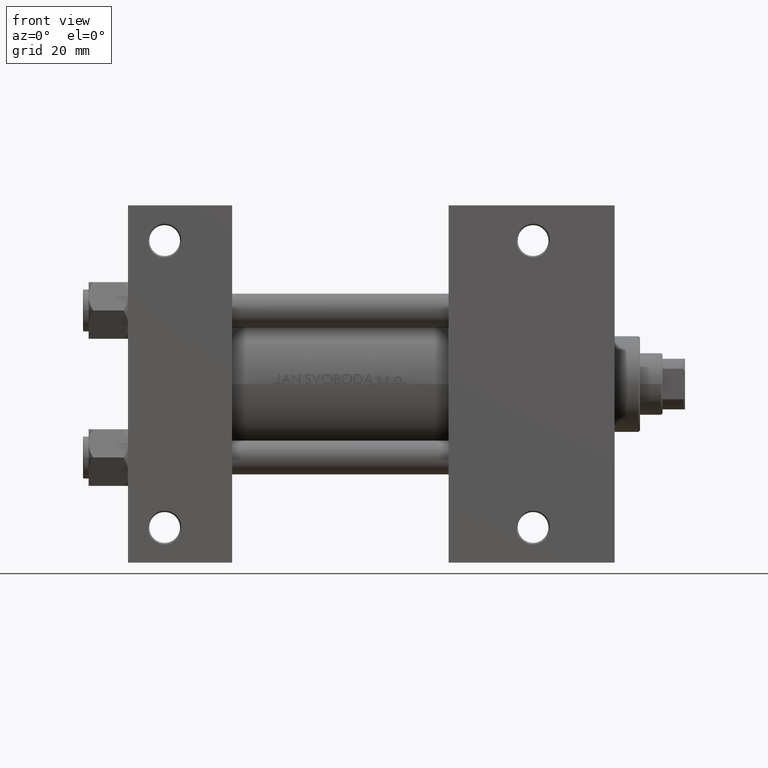
[diagram: clean part render]
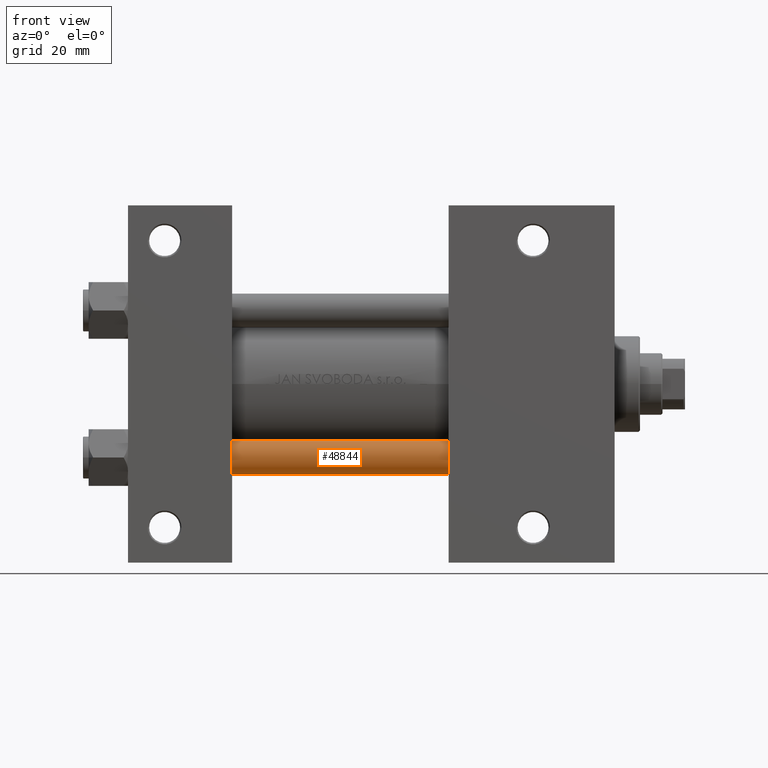
[diagram: same view with one face highlighted and labeled with its STEP entity id]
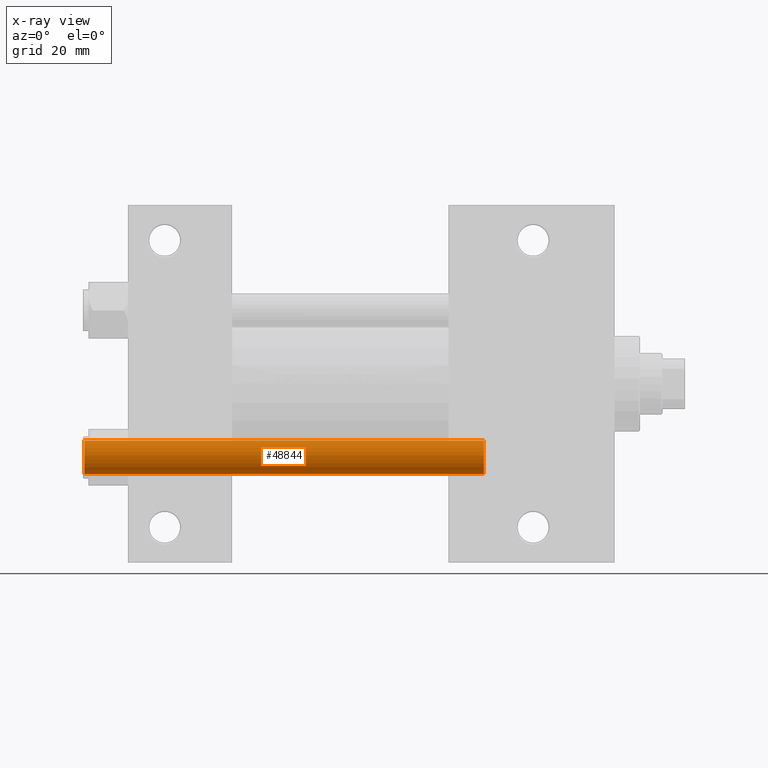
[diagram: x-ray of the same camera — body ghosted, the highlighted face saturated]
A machine part, front view. The second image highlights one B-rep face of the part: STEP entity #48844.
The next image is the same camera in x-ray: the body ghosted, the highlighted face saturated — about 0% of this face is hidden behind the body in this view.
In plain terms, the highlighted cylindrical surface (edge-blend (fillet) strip) has radius 6 mm, axis along (-1, 0, 0).
Its self-contained STEP definition (entity closure, byte-faithful):
#1151 = CIRCLE ( 'NONE', #34580, 6.000000000000000888 ) ;
#2144 = EDGE_CURVE ( 'NONE', #30320, #35912, #23430, .T. ) ;
#2688 = CARTESIAN_POINT ( 'NONE',  ( 6.000000000000000888, 7.347880794884120722E-16, 143.0000000000000000 ) ) ;
#3276 = CARTESIAN_POINT ( 'NONE',  ( -6.000000000000000888, 0.000000000000000000, 142.5000000000000000 ) ) ;
#3711 = ORIENTED_EDGE ( 'NONE', *, *, #45344, .T. ) ;
#5593 = CYLINDRICAL_SURFACE ( 'NONE', #22602, 6.000000000000000888 ) ;
#5954 = ORIENTED_EDGE ( 'NONE', *, *, #2144, .T. ) ;
#6485 = CARTESIAN_POINT ( 'NONE',  ( -6.000000000000000888, 0.000000000000000000, 0.5000000000000281997 ) ) ;
#8303 = AXIS2_PLACEMENT_3D ( 'NONE', #24395, #20905, #15927 ) ;
#8480 = CARTESIAN_POINT ( 'NONE',  ( 6.000000000000000888, 7.347880794884120722E-16, 142.5000000000000000 ) ) ;
#9822 = CARTESIAN_POINT ( 'NONE',  ( 0.000000000000000000, 0.000000000000000000, 143.0000000000000000 ) ) ;
#11067 = CARTESIAN_POINT ( 'NONE',  ( 6.000000000000000888, 7.347880794884120722E-16, 0.5000000000000281997 ) ) ;
#11159 = VECTOR ( 'NONE', #22698, 1000.000000000000000 ) ;
#12402 = ORIENTED_EDGE ( 'NONE', *, *, #21842, .F. ) ;
#13829 = VERTEX_POINT ( 'NONE', #6485 ) ;
#15927 = DIRECTION ( 'NONE',  ( 1.000000000000000000, 0.000000000000000000, 0.000000000000000000 ) ) ;
#16566 = FACE_OUTER_BOUND ( 'NONE', #30965, .T. ) ;
#16859 = DIRECTION ( 'NONE',  ( 1.000000000000000000, 0.000000000000000000, 0.000000000000000000 ) ) ;
#18944 = LINE ( 'NONE', #38856, #11159 ) ;
#20624 = CARTESIAN_POINT ( 'NONE',  ( 0.000000000000000000, 0.000000000000000000, 0.5000000000000281997 ) ) ;
#20905 = DIRECTION ( 'NONE',  ( 0.000000000000000000, 0.000000000000000000, -1.000000000000000000 ) ) ;
#21842 = EDGE_CURVE ( 'NONE', #30320, #13829, #18944, .T. ) ;
#22602 = AXIS2_PLACEMENT_3D ( 'NONE', #9822, #32519, #35510 ) ;
#22698 = DIRECTION ( 'NONE',  ( -0.000000000000000000, -0.000000000000000000, -1.000000000000000000 ) ) ;
#23430 = CIRCLE ( 'NONE', #8303, 6.000000000000000888 ) ;
#24395 = CARTESIAN_POINT ( 'NONE',  ( 0.000000000000000000, 0.000000000000000000, 142.5000000000000000 ) ) ;
#30320 = VERTEX_POINT ( 'NONE', #3276 ) ;
#30965 = EDGE_LOOP ( 'NONE', ( #5954, #3711, #36803, #12402 ) ) ;
#32519 = DIRECTION ( 'NONE',  ( -0.000000000000000000, -0.000000000000000000, -1.000000000000000000 ) ) ;
#34580 = AXIS2_PLACEMENT_3D ( 'NONE', #20624, #43764, #16859 ) ;
#35510 = DIRECTION ( 'NONE',  ( -1.000000000000000000, 0.000000000000000000, 0.000000000000000000 ) ) ;
#35912 = VERTEX_POINT ( 'NONE', #8480 ) ;
#36803 = ORIENTED_EDGE ( 'NONE', *, *, #38517, .T. ) ;
#36823 = LINE ( 'NONE', #2688, #39947 ) ;
#38517 = EDGE_CURVE ( 'NONE', #42749, #13829, #1151, .T. ) ;
#38856 = CARTESIAN_POINT ( 'NONE',  ( -6.000000000000000888, 0.000000000000000000, 143.0000000000000000 ) ) ;
#39947 = VECTOR ( 'NONE', #43806, 1000.000000000000000 ) ;
#42749 = VERTEX_POINT ( 'NONE', #11067 ) ;
#43764 = DIRECTION ( 'NONE',  ( -0.000000000000000000, -0.000000000000000000, 1.000000000000000000 ) ) ;
#43806 = DIRECTION ( 'NONE',  ( -0.000000000000000000, -0.000000000000000000, -1.000000000000000000 ) ) ;
#45344 = EDGE_CURVE ( 'NONE', #35912, #42749, #36823, .T. ) ;
#48844 = ADVANCED_FACE ( 'NONE', ( #16566 ), #5593, .T. ) ;